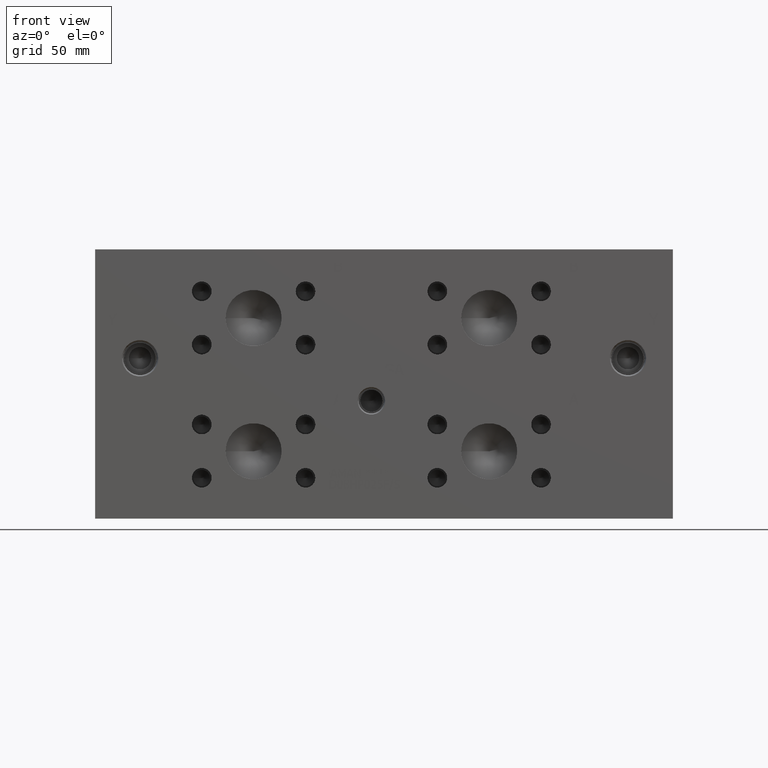
[diagram: clean part render]
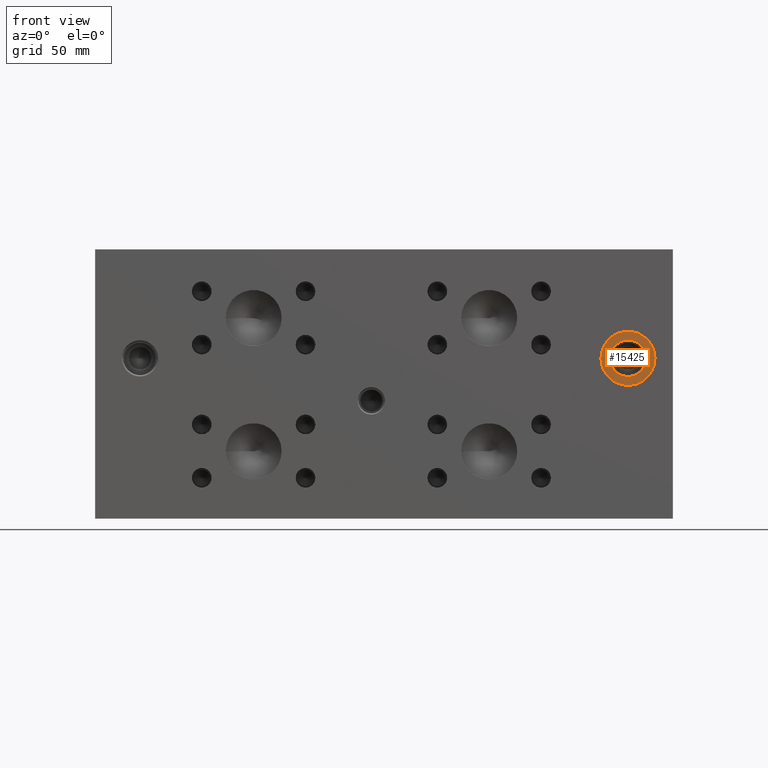
[diagram: same view with one face highlighted and labeled with its STEP entity id]
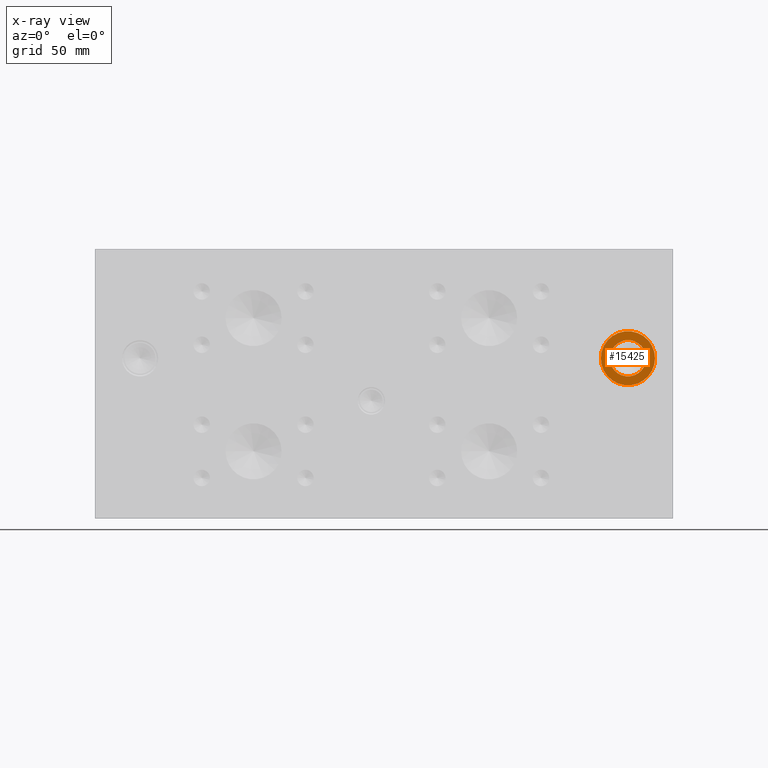
[diagram: x-ray of the same camera — body ghosted, the highlighted face saturated]
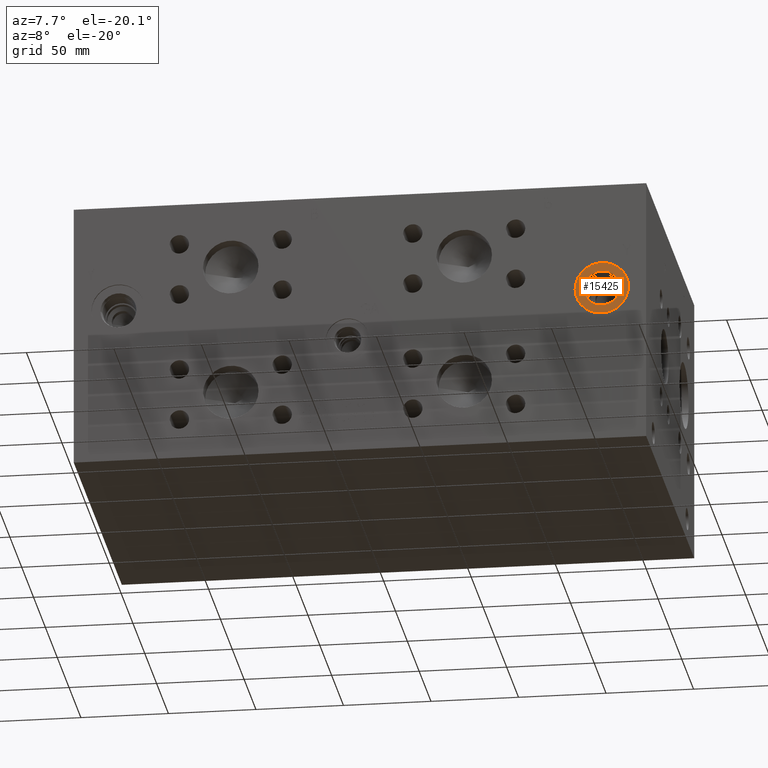
[diagram: same view with one face highlighted and labeled with its STEP entity id]
A machine part, front view. The second image highlights one B-rep face of the part: STEP entity #15425.
The next image is the same camera in x-ray: the body ghosted, the highlighted face saturated — about 0% of this face is hidden behind the body in this view.
A second angle (auxiliary view) of the same face is appended — the face is thin or edge-on in the first view.
In plain terms, the highlighted planar face has unit normal (0, 1, 0).
Its self-contained STEP definition (entity closure, byte-faithful):
#399=CIRCLE('',#16248,15.3162);
#400=CIRCLE('',#16249,15.3162);
#401=CIRCLE('',#16251,10.2997);
#402=CIRCLE('',#16252,10.2997);
#849=FACE_BOUND('',#2907,.T.);
#1987=FACE_OUTER_BOUND('',#2906,.T.);
#2906=EDGE_LOOP('',(#12733,#12734));
#2907=EDGE_LOOP('',(#12735,#12736));
#7013=VERTEX_POINT('',#25941);
#7014=VERTEX_POINT('',#25943);
#7015=VERTEX_POINT('',#25947);
#7016=VERTEX_POINT('',#25948);
#9056=EDGE_CURVE('',#7013,#7014,#399,.T.);
#9057=EDGE_CURVE('',#7014,#7013,#400,.T.);
#9058=EDGE_CURVE('',#7015,#7016,#401,.T.);
#9059=EDGE_CURVE('',#7016,#7015,#402,.T.);
#12733=ORIENTED_EDGE('',*,*,#9057,.F.);
#12734=ORIENTED_EDGE('',*,*,#9056,.F.);
#12735=ORIENTED_EDGE('',*,*,#9058,.T.);
#12736=ORIENTED_EDGE('',*,*,#9059,.T.);
#14294=PLANE('',#16250);
#15425=ADVANCED_FACE('',(#1987,#849),#14294,.F.);
#16248=AXIS2_PLACEMENT_3D('',#25944,#19104,#19105);
#16249=AXIS2_PLACEMENT_3D('',#25945,#19106,#19107);
#16250=AXIS2_PLACEMENT_3D('',#25946,#19108,#19109);
#16251=AXIS2_PLACEMENT_3D('',#25949,#19110,#19111);
#16252=AXIS2_PLACEMENT_3D('',#25950,#19112,#19113);
#19104=DIRECTION('center_axis',(0.,1.,0.));
#19105=DIRECTION('ref_axis',(1.,0.,0.));
#19106=DIRECTION('center_axis',(0.,1.,0.));
#19107=DIRECTION('ref_axis',(1.,0.,0.));
#19108=DIRECTION('center_axis',(0.,1.,0.));
#19109=DIRECTION('ref_axis',(0.,0.,1.));
#19110=DIRECTION('center_axis',(0.,1.,0.));
#19111=DIRECTION('ref_axis',(1.,0.,0.));
#19112=DIRECTION('center_axis',(0.,1.,0.));
#19113=DIRECTION('ref_axis',(1.,0.,0.));
#25941=CARTESIAN_POINT('',(286.3088,0.7874,90.7542));
#25943=CARTESIAN_POINT('',(316.9412,0.7874,90.7542));
#25944=CARTESIAN_POINT('Origin',(301.625,0.7874,90.7542));
#25945=CARTESIAN_POINT('Origin',(301.625,0.7874,90.7542));
#25946=CARTESIAN_POINT('Origin',(311.9247,0.7874,90.7542));
#25947=CARTESIAN_POINT('',(311.9247,0.7874,90.7542));
#25948=CARTESIAN_POINT('',(291.3253,0.7874,90.7542));
#25949=CARTESIAN_POINT('Origin',(301.625,0.7874,90.7542));
#25950=CARTESIAN_POINT('Origin',(301.625,0.7874,90.7542));